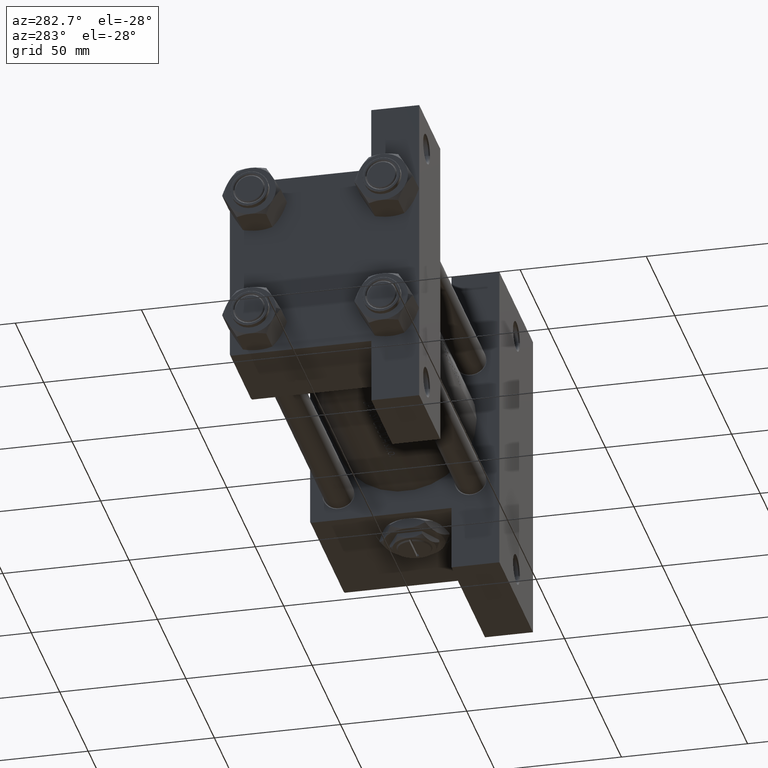
[diagram: clean part render]
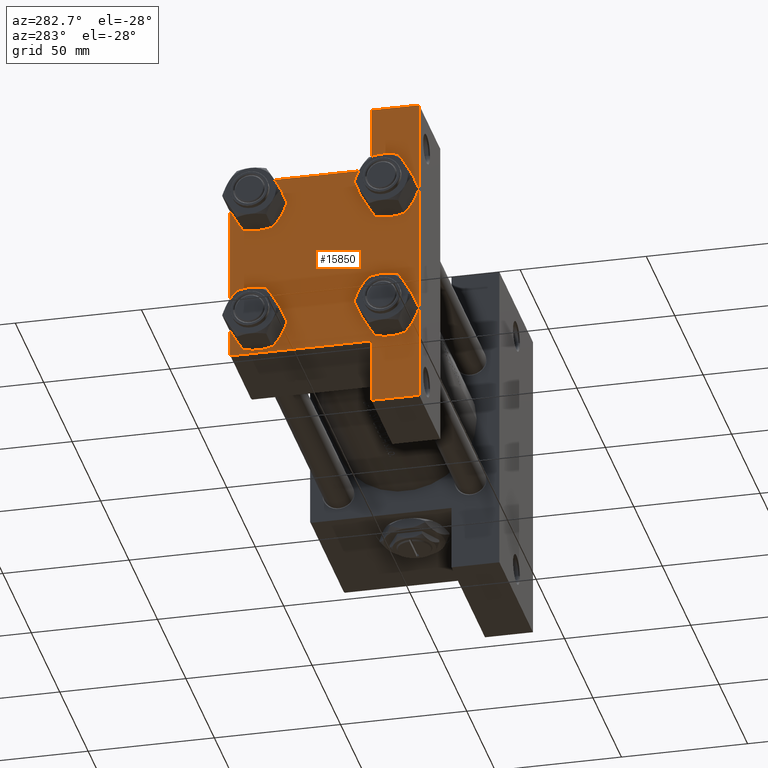
[diagram: same view with one face highlighted and labeled with its STEP entity id]
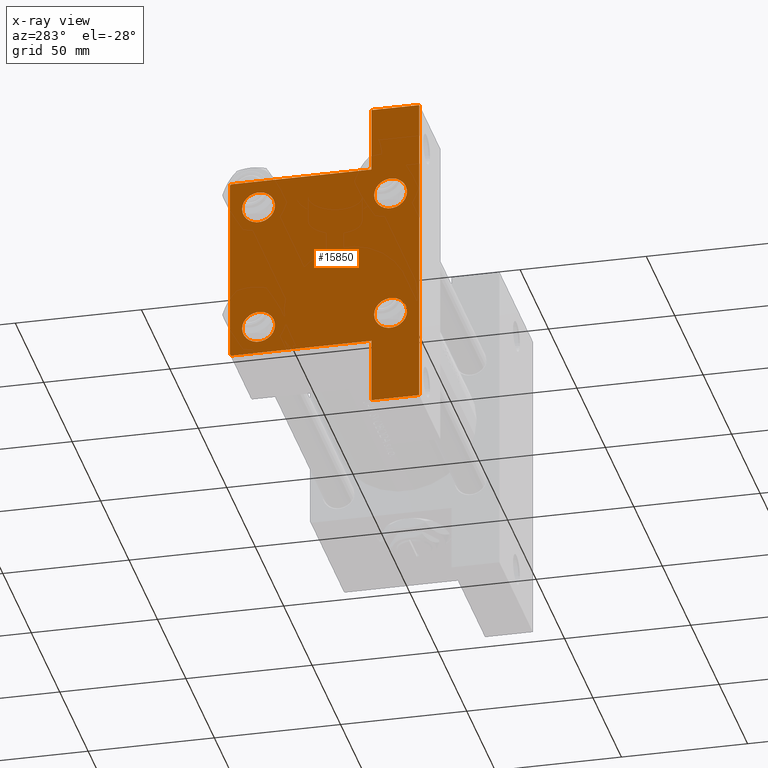
[diagram: x-ray of the same camera — body ghosted, the highlighted face saturated]
A machine part, auxiliary view. The second image highlights one B-rep face of the part: STEP entity #15850.
The next image is the same camera in x-ray: the body ghosted, the highlighted face saturated — about 0% of this face is hidden behind the body in this view.
In plain terms, the highlighted planar face has unit normal (-1, 0, -0).
Its self-contained STEP definition (entity closure, byte-faithful):
#296 = CARTESIAN_POINT ( 'NONE',  ( 0.000000000000000000, 37.49999999999999289, 37.50000000000000000 ) ) ;
#362 = CARTESIAN_POINT ( 'NONE',  ( 1.595073532467135757E-14, 63.50000000000001421, -18.50000000000000355 ) ) ;
#697 = ORIENTED_EDGE ( 'NONE', *, *, #23295, .T. ) ;
#814 = CARTESIAN_POINT ( 'NONE',  ( 0.000000000000000000, -37.50000000000000711, 37.49999999999999289 ) ) ;
#1551 = VECTOR ( 'NONE', #26701, 1000.000000000000000 ) ;
#1778 = CIRCLE ( 'NONE', #42332, 6.500000000000023093 ) ;
#1857 = EDGE_CURVE ( 'NONE', #44692, #3836, #24095, .T. ) ;
#2104 = VERTEX_POINT ( 'NONE', #18895 ) ;
#2636 = PLANE ( 'NONE',  #37471 ) ;
#3193 = ORIENTED_EDGE ( 'NONE', *, *, #39142, .T. ) ;
#3511 = CARTESIAN_POINT ( 'NONE',  ( 3.977209754999747208E-16, -63.49999999999998579, 26.72167621838007889 ) ) ;
#3535 = VERTEX_POINT ( 'NONE', #16105 ) ;
#3836 = VERTEX_POINT ( 'NONE', #17747 ) ;
#3922 = CIRCLE ( 'NONE', #22233, 6.500000000000015987 ) ;
#4077 = CARTESIAN_POINT ( 'NONE',  ( -7.145701223179004046E-16, -37.50000000000000711, -18.50000000000000355 ) ) ;
#4241 = VECTOR ( 'NONE', #8556, 1000.000000000000000 ) ;
#4800 = CARTESIAN_POINT ( 'NONE',  ( 1.595073532467135441E-14, 63.50000000000001421, 26.72167621838005047 ) ) ;
#5146 = CARTESIAN_POINT ( 'NONE',  ( 0.000000000000000000, -26.14999999999999147, 26.15000000000000924 ) ) ;
#5467 = VERTEX_POINT ( 'NONE', #21421 ) ;
#5773 = DIRECTION ( 'NONE',  ( 1.000000000000000000, -0.000000000000000000, 0.000000000000000000 ) ) ;
#5810 = CARTESIAN_POINT ( 'NONE',  ( 0.000000000000000000, 26.14999999999999858, -32.65000000000001990 ) ) ;
#6556 = ORIENTED_EDGE ( 'NONE', *, *, #21455, .F. ) ;
#7028 = ORIENTED_EDGE ( 'NONE', *, *, #47306, .T. ) ;
#7229 = CARTESIAN_POINT ( 'NONE',  ( 0.000000000000000000, -26.14999999999999147, -26.15000000000000924 ) ) ;
#7526 = VECTOR ( 'NONE', #10109, 1000.000000000000000 ) ;
#8010 = ORIENTED_EDGE ( 'NONE', *, *, #1857, .F. ) ;
#8331 = EDGE_CURVE ( 'NONE', #15099, #46987, #3922, .T. ) ;
#8520 = VECTOR ( 'NONE', #17560, 1000.000000000000000 ) ;
#8556 = DIRECTION ( 'NONE',  ( 0.000000000000000000, 9.251858538542971581E-17, -1.000000000000000000 ) ) ;
#8834 = DIRECTION ( 'NONE',  ( 1.000000000000000000, -0.000000000000000000, 0.000000000000000000 ) ) ;
#8963 = EDGE_CURVE ( 'NONE', #3535, #26777, #45873, .T. ) ;
#9049 = VECTOR ( 'NONE', #18669, 1000.000000000000000 ) ;
#9070 = DIRECTION ( 'NONE',  ( 0.000000000000000000, 0.7071067811865474617, -0.7071067811865474617 ) ) ;
#9349 = ORIENTED_EDGE ( 'NONE', *, *, #33247, .T. ) ;
#10109 = DIRECTION ( 'NONE',  ( 0.000000000000000000, -1.000000000000000000, -9.251858538542972814E-17 ) ) ;
#10239 = CARTESIAN_POINT ( 'NONE',  ( 0.000000000000000000, 26.14999999999999858, -26.15000000000000213 ) ) ;
#10597 = FACE_OUTER_BOUND ( 'NONE', #20857, .T. ) ;
#10978 = DIRECTION ( 'NONE',  ( 0.000000000000000000, -1.734723475976806848E-16, -1.000000000000000000 ) ) ;
#11351 = EDGE_CURVE ( 'NONE', #33095, #31339, #34948, .T. ) ;
#11585 = DIRECTION ( 'NONE',  ( -2.877097866686192789E-16, -1.000000000000000000, 0.000000000000000000 ) ) ;
#11835 = LINE ( 'NONE', #362, #39903 ) ;
#12252 = LINE ( 'NONE', #4800, #9049 ) ;
#12301 = ORIENTED_EDGE ( 'NONE', *, *, #46100, .T. ) ;
#12347 = CIRCLE ( 'NONE', #40166, 6.500000000000023093 ) ;
#12357 = VERTEX_POINT ( 'NONE', #34770 ) ;
#12551 = CARTESIAN_POINT ( 'NONE',  ( 0.000000000000000000, 37.24999999999999289, 37.24999999999999289 ) ) ;
#12643 = CARTESIAN_POINT ( 'NONE',  ( 0.000000000000000000, 26.14999999999999858, 26.15000000000000213 ) ) ;
#12884 = DIRECTION ( 'NONE',  ( 1.000000000000000000, -0.000000000000000000, 0.000000000000000000 ) ) ;
#13752 = DIRECTION ( 'NONE',  ( -0.000000000000000000, 0.7071067811865474617, 0.7071067811865474617 ) ) ;
#14846 = VECTOR ( 'NONE', #19631, 1000.000000000000000 ) ;
#15015 = CARTESIAN_POINT ( 'NONE',  ( 0.000000000000000000, 26.14999999999999858, 32.65000000000002700 ) ) ;
#15058 = ORIENTED_EDGE ( 'NONE', *, *, #29040, .T. ) ;
#15099 = VERTEX_POINT ( 'NONE', #5810 ) ;
#15204 = LINE ( 'NONE', #3511, #35925 ) ;
#15262 = ORIENTED_EDGE ( 'NONE', *, *, #45461, .T. ) ;
#15850 = ADVANCED_FACE ( 'NONE', ( #44199, #40467, #21557, #33256, #10597 ), #2636, .T. ) ;
#15962 = VERTEX_POINT ( 'NONE', #23512 ) ;
#16105 = CARTESIAN_POINT ( 'NONE',  ( 0.000000000000000000, 36.99999999999999289, 37.50000000000000000 ) ) ;
#16347 = DIRECTION ( 'NONE',  ( 1.000000000000000000, -0.000000000000000000, 0.000000000000000000 ) ) ;
#16386 = CARTESIAN_POINT ( 'NONE',  ( 3.977209754999744250E-16, -63.49999999999998579, -18.50000000000000355 ) ) ;
#16584 = DIRECTION ( 'NONE',  ( 0.000000000000000000, 0.000000000000000000, 1.000000000000000000 ) ) ;
#16967 = DIRECTION ( 'NONE',  ( 0.000000000000000000, 0.000000000000000000, 1.000000000000000000 ) ) ;
#17019 = CIRCLE ( 'NONE', #29752, 6.500000000000015987 ) ;
#17109 = AXIS2_PLACEMENT_3D ( 'NONE', #10239, #25169, #32402 ) ;
#17184 = EDGE_LOOP ( 'NONE', ( #15058, #25714 ) ) ;
#17560 = DIRECTION ( 'NONE',  ( 0.000000000000000000, 0.000000000000000000, -1.000000000000000000 ) ) ;
#17596 = ORIENTED_EDGE ( 'NONE', *, *, #18449, .F. ) ;
#17747 = CARTESIAN_POINT ( 'NONE',  ( 3.977209754999747208E-16, -63.50000000000000000, -18.50000000000000355 ) ) ;
#17802 = LINE ( 'NONE', #25996, #8520 ) ;
#18449 = EDGE_CURVE ( 'NONE', #3836, #35693, #15204, .T. ) ;
#18669 = DIRECTION ( 'NONE',  ( 0.000000000000000000, -1.734723475976806848E-16, -1.000000000000000000 ) ) ;
#18744 = EDGE_CURVE ( 'NONE', #2104, #12357, #11835, .T. ) ;
#18895 = CARTESIAN_POINT ( 'NONE',  ( 1.595073532467135441E-14, 63.50000000000000000, -18.50000000000000355 ) ) ;
#19631 = DIRECTION ( 'NONE',  ( 4.278042683914906889E-17, -1.000000000000000000, 0.000000000000000000 ) ) ;
#19756 = LINE ( 'NONE', #814, #4241 ) ;
#19996 = CARTESIAN_POINT ( 'NONE',  ( 0.000000000000000000, -26.14999999999999147, -32.65000000000002700 ) ) ;
#20484 = LINE ( 'NONE', #42396, #39585 ) ;
#20621 = AXIS2_PLACEMENT_3D ( 'NONE', #12643, #12884, #24092 ) ;
#20713 = CARTESIAN_POINT ( 'NONE',  ( 0.000000000000000000, -26.14999999999999147, 32.65000000000003411 ) ) ;
#20857 = EDGE_LOOP ( 'NONE', ( #6556, #7028, #42640, #39467, #15262, #43866, #9349, #3193, #17596, #8010 ) ) ;
#20949 = DIRECTION ( 'NONE',  ( 0.000000000000000000, 0.000000000000000000, 1.000000000000000000 ) ) ;
#21421 = CARTESIAN_POINT ( 'NONE',  ( 0.000000000000000000, 37.49999999999999289, 37.00000000000000000 ) ) ;
#21455 = EDGE_CURVE ( 'NONE', #42658, #44692, #19756, .T. ) ;
#21557 = FACE_BOUND ( 'NONE', #25658, .T. ) ;
#22103 = EDGE_LOOP ( 'NONE', ( #697, #12301 ) ) ;
#22233 = AXIS2_PLACEMENT_3D ( 'NONE', #48749, #28400, #16967 ) ;
#22368 = CARTESIAN_POINT ( 'NONE',  ( 1.595073532467135441E-14, 63.50000000000000000, -37.50000000000002132 ) ) ;
#22410 = DIRECTION ( 'NONE',  ( 1.000000000000000000, -0.000000000000000000, 0.000000000000000000 ) ) ;
#22649 = DIRECTION ( 'NONE',  ( 0.000000000000000000, 0.000000000000000000, 1.000000000000000000 ) ) ;
#22819 = VERTEX_POINT ( 'NONE', #22368 ) ;
#23295 = EDGE_CURVE ( 'NONE', #15962, #25440, #17019, .T. ) ;
#23459 = CARTESIAN_POINT ( 'NONE',  ( 0.000000000000000000, -26.14999999999999147, 26.15000000000000924 ) ) ;
#23512 = CARTESIAN_POINT ( 'NONE',  ( 0.000000000000000000, -26.14999999999999147, -19.64999999999999503 ) ) ;
#23578 = LINE ( 'NONE', #38762, #7526 ) ;
#24011 = AXIS2_PLACEMENT_3D ( 'NONE', #5146, #16347, #16584 ) ;
#24092 = DIRECTION ( 'NONE',  ( 0.000000000000000000, 0.000000000000000000, 1.000000000000000000 ) ) ;
#24095 = LINE ( 'NONE', #16386, #14846 ) ;
#25169 = DIRECTION ( 'NONE',  ( 1.000000000000000000, -0.000000000000000000, 0.000000000000000000 ) ) ;
#25440 = VERTEX_POINT ( 'NONE', #19996 ) ;
#25658 = EDGE_LOOP ( 'NONE', ( #43403, #46080 ) ) ;
#25714 = ORIENTED_EDGE ( 'NONE', *, *, #40420, .T. ) ;
#25996 = CARTESIAN_POINT ( 'NONE',  ( 0.000000000000000000, 37.49999999999999289, 37.50000000000000000 ) ) ;
#26701 = DIRECTION ( 'NONE',  ( 0.000000000000000000, -1.000000000000000000, -9.251858538542971581E-17 ) ) ;
#26746 = CARTESIAN_POINT ( 'NONE',  ( 0.000000000000000000, -37.00000000000000711, 37.49999999999999289 ) ) ;
#26777 = VERTEX_POINT ( 'NONE', #26746 ) ;
#27103 = CARTESIAN_POINT ( 'NONE',  ( 0.000000000000000000, 26.14999999999999858, -19.64999999999998792 ) ) ;
#27534 = ORIENTED_EDGE ( 'NONE', *, *, #11351, .T. ) ;
#28400 = DIRECTION ( 'NONE',  ( 1.000000000000000000, -0.000000000000000000, 0.000000000000000000 ) ) ;
#28693 = EDGE_LOOP ( 'NONE', ( #27534, #32691 ) ) ;
#29040 = EDGE_CURVE ( 'NONE', #41660, #30225, #36744, .T. ) ;
#29218 = CIRCLE ( 'NONE', #37974, 6.500000000000015987 ) ;
#29752 = AXIS2_PLACEMENT_3D ( 'NONE', #31730, #8834, #46658 ) ;
#30225 = VERTEX_POINT ( 'NONE', #33989 ) ;
#30551 = EDGE_CURVE ( 'NONE', #31339, #33095, #1778, .T. ) ;
#31339 = VERTEX_POINT ( 'NONE', #38574 ) ;
#31730 = CARTESIAN_POINT ( 'NONE',  ( 0.000000000000000000, -26.14999999999999147, -26.15000000000000924 ) ) ;
#31997 = EDGE_CURVE ( 'NONE', #3535, #5467, #42423, .T. ) ;
#32402 = DIRECTION ( 'NONE',  ( 0.000000000000000000, 0.000000000000000000, 1.000000000000000000 ) ) ;
#32691 = ORIENTED_EDGE ( 'NONE', *, *, #30551, .T. ) ;
#33011 = DIRECTION ( 'NONE',  ( -1.000000000000000000, 0.000000000000000000, -0.000000000000000000 ) ) ;
#33095 = VERTEX_POINT ( 'NONE', #15015 ) ;
#33247 = EDGE_CURVE ( 'NONE', #2104, #22819, #12252, .T. ) ;
#33256 = FACE_BOUND ( 'NONE', #28693, .T. ) ;
#33989 = CARTESIAN_POINT ( 'NONE',  ( 0.000000000000000000, -26.14999999999999147, 19.64999999999999147 ) ) ;
#34770 = CARTESIAN_POINT ( 'NONE',  ( 0.000000000000000000, 37.49999999999999289, -18.49999999999999645 ) ) ;
#34948 = CIRCLE ( 'NONE', #20621, 6.500000000000023093 ) ;
#35693 = VERTEX_POINT ( 'NONE', #36887 ) ;
#35925 = VECTOR ( 'NONE', #10978, 1000.000000000000000 ) ;
#36026 = VECTOR ( 'NONE', #9070, 1000.000000000000114 ) ;
#36745 = CARTESIAN_POINT ( 'NONE',  ( 0.000000000000000000, 0.000000000000000000, 0.000000000000000000 ) ) ;
#36744 = CIRCLE ( 'NONE', #24011, 6.500000000000023093 ) ;
#36887 = CARTESIAN_POINT ( 'NONE',  ( 3.977209754999747208E-16, -63.50000000000000000, -37.49999999999999289 ) ) ;
#37090 = DIRECTION ( 'NONE',  ( 1.000000000000000000, -0.000000000000000000, 0.000000000000000000 ) ) ;
#37471 = AXIS2_PLACEMENT_3D ( 'NONE', #36745, #33011, #48169 ) ;
#37974 = AXIS2_PLACEMENT_3D ( 'NONE', #7229, #22410, #22649 ) ;
#38574 = CARTESIAN_POINT ( 'NONE',  ( 0.000000000000000000, 26.14999999999999858, 19.64999999999998437 ) ) ;
#38762 = CARTESIAN_POINT ( 'NONE',  ( 0.000000000000000000, 37.49999999999999289, -37.50000000000000000 ) ) ;
#39142 = EDGE_CURVE ( 'NONE', #22819, #35693, #23578, .T. ) ;
#39351 = CIRCLE ( 'NONE', #17109, 6.500000000000015987 ) ;
#39467 = ORIENTED_EDGE ( 'NONE', *, *, #31997, .T. ) ;
#39585 = VECTOR ( 'NONE', #13752, 1000.000000000000114 ) ;
#39903 = VECTOR ( 'NONE', #11585, 1000.000000000000000 ) ;
#40166 = AXIS2_PLACEMENT_3D ( 'NONE', #23459, #5773, #20949 ) ;
#40324 = CARTESIAN_POINT ( 'NONE',  ( 0.000000000000000000, -37.50000000000000711, 36.99999999999999289 ) ) ;
#40420 = EDGE_CURVE ( 'NONE', #30225, #41660, #12347, .T. ) ;
#40467 = FACE_BOUND ( 'NONE', #22103, .T. ) ;
#40483 = EDGE_CURVE ( 'NONE', #46987, #15099, #39351, .T. ) ;
#40574 = CARTESIAN_POINT ( 'NONE',  ( 0.000000000000000000, 26.14999999999999858, 26.15000000000000213 ) ) ;
#41660 = VERTEX_POINT ( 'NONE', #20713 ) ;
#42332 = AXIS2_PLACEMENT_3D ( 'NONE', #40574, #37090, #44793 ) ;
#42396 = CARTESIAN_POINT ( 'NONE',  ( -0.000000000000000000, -37.25000000000000000, 37.25000000000000000 ) ) ;
#42423 = LINE ( 'NONE', #12551, #36026 ) ;
#42640 = ORIENTED_EDGE ( 'NONE', *, *, #8963, .F. ) ;
#42658 = VERTEX_POINT ( 'NONE', #40324 ) ;
#43403 = ORIENTED_EDGE ( 'NONE', *, *, #40483, .T. ) ;
#43866 = ORIENTED_EDGE ( 'NONE', *, *, #18744, .F. ) ;
#44199 = FACE_BOUND ( 'NONE', #17184, .T. ) ;
#44692 = VERTEX_POINT ( 'NONE', #4077 ) ;
#44793 = DIRECTION ( 'NONE',  ( 0.000000000000000000, 0.000000000000000000, 1.000000000000000000 ) ) ;
#45461 = EDGE_CURVE ( 'NONE', #5467, #12357, #17802, .T. ) ;
#45873 = LINE ( 'NONE', #296, #1551 ) ;
#46080 = ORIENTED_EDGE ( 'NONE', *, *, #8331, .T. ) ;
#46100 = EDGE_CURVE ( 'NONE', #25440, #15962, #29218, .T. ) ;
#46658 = DIRECTION ( 'NONE',  ( 0.000000000000000000, 0.000000000000000000, 1.000000000000000000 ) ) ;
#46987 = VERTEX_POINT ( 'NONE', #27103 ) ;
#47306 = EDGE_CURVE ( 'NONE', #42658, #26777, #20484, .T. ) ;
#48169 = DIRECTION ( 'NONE',  ( -0.000000000000000000, 0.000000000000000000, 1.000000000000000000 ) ) ;
#48749 = CARTESIAN_POINT ( 'NONE',  ( 0.000000000000000000, 26.14999999999999858, -26.15000000000000213 ) ) ;